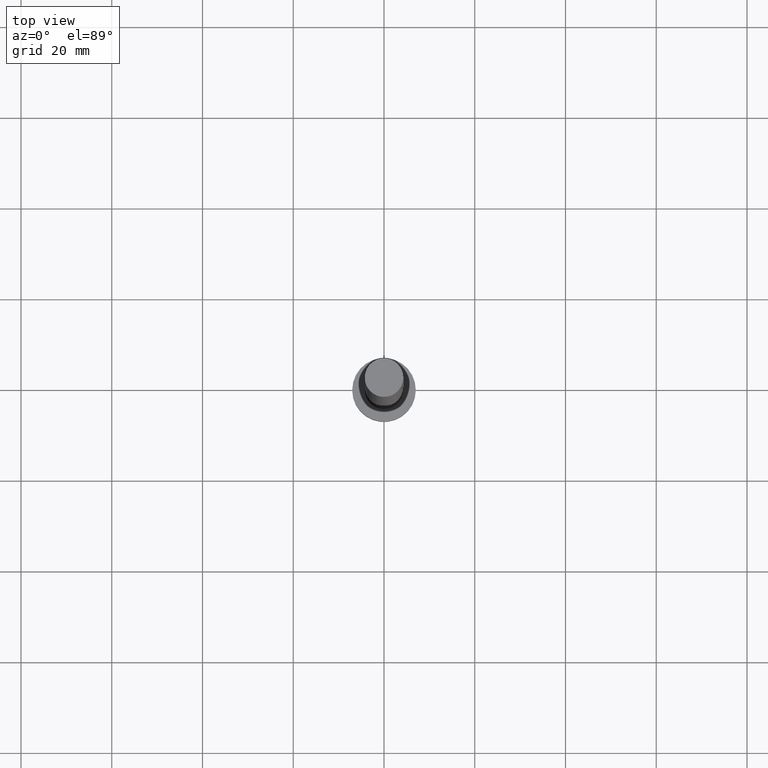
[diagram: clean part render]
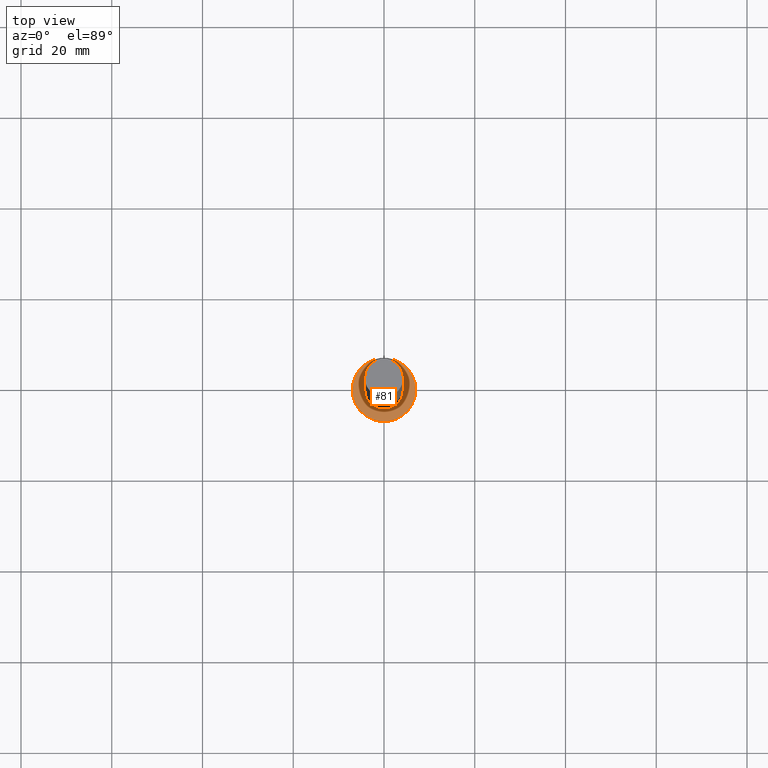
[diagram: same view with one face highlighted and labeled with its STEP entity id]
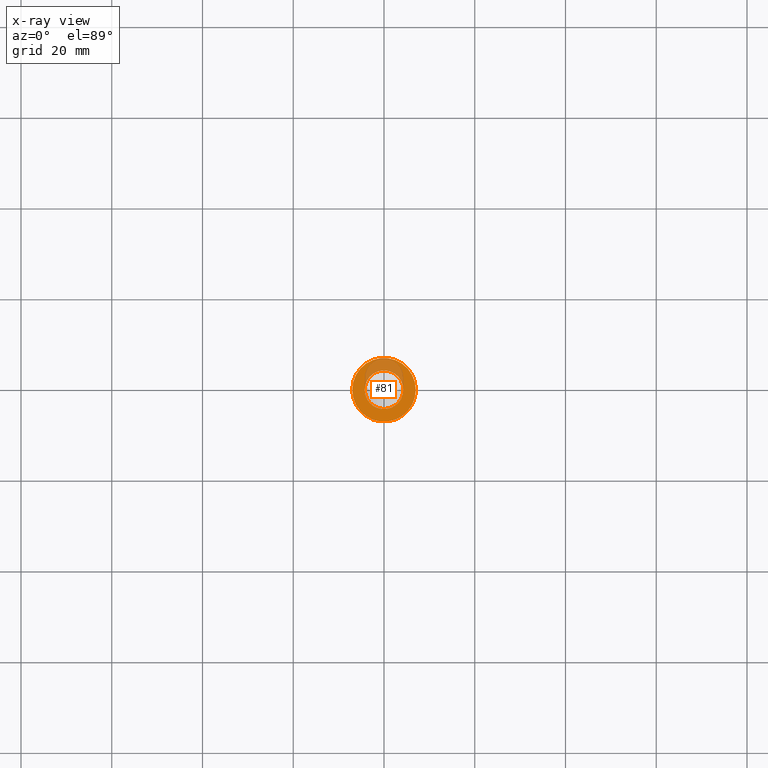
[diagram: x-ray of the same camera — body ghosted, the highlighted face saturated]
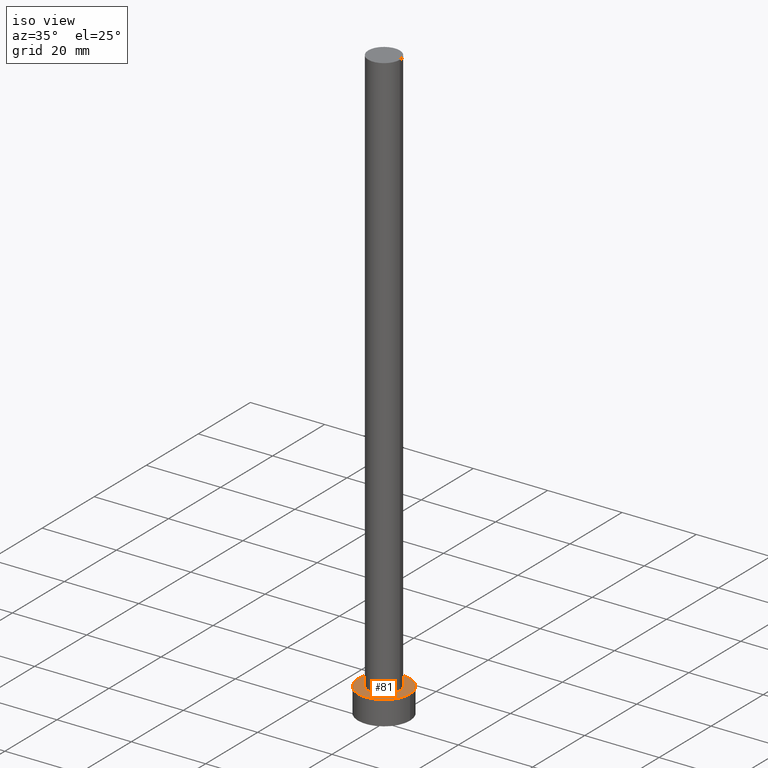
[diagram: same view with one face highlighted and labeled with its STEP entity id]
A machine part, top view. The second image highlights one B-rep face of the part: STEP entity #81.
The next image is the same camera in x-ray: the body ghosted, the highlighted face saturated — about 24% of this face is hidden behind the body in this view.
A second angle (iso view) of the same face is appended — the face is thin or edge-on in the first view.
In plain terms, the highlighted planar face has unit normal (0, 0, 1).
Its self-contained STEP definition (entity closure, byte-faithful):
#6 = VERTEX_POINT ( 'NONE', #244 ) ;
#11 = AXIS2_PLACEMENT_3D ( 'NONE', #165, #100, #216 ) ;
#12 = DIRECTION ( 'NONE',  ( 0.000000000000000000, 0.000000000000000000, 1.000000000000000000 ) ) ;
#14 = CARTESIAN_POINT ( 'NONE',  ( 0.000000000000000000, 0.000000000000000000, 6.500000000000000000 ) ) ;
#17 = DIRECTION ( 'NONE',  ( 0.000000000000000000, 0.000000000000000000, 1.000000000000000000 ) ) ;
#19 = DIRECTION ( 'NONE',  ( 0.000000000000000000, 0.000000000000000000, 1.000000000000000000 ) ) ;
#22 = AXIS2_PLACEMENT_3D ( 'NONE', #237, #144, #62 ) ;
#28 = AXIS2_PLACEMENT_3D ( 'NONE', #118, #19, #163 ) ;
#52 = EDGE_CURVE ( 'NONE', #108, #243, #204, .T. ) ;
#55 = AXIS2_PLACEMENT_3D ( 'NONE', #14, #17, #176 ) ;
#58 = CARTESIAN_POINT ( 'NONE',  ( -7.000000000000000000, 0.000000000000000000, 6.500000000000000000 ) ) ;
#62 = DIRECTION ( 'NONE',  ( 1.000000000000000000, 0.000000000000000000, 0.000000000000000000 ) ) ;
#74 = PLANE ( 'NONE',  #28 ) ;
#80 = ORIENTED_EDGE ( 'NONE', *, *, #174, .F. ) ;
#81 = ADVANCED_FACE ( 'NONE', ( #121, #215 ), #74, .T. ) ;
#84 = EDGE_LOOP ( 'NONE', ( #125, #80 ) ) ;
#94 = CIRCLE ( 'NONE', #22, 4.250000000000000000 ) ;
#100 = DIRECTION ( 'NONE',  ( 0.000000000000000000, 0.000000000000000000, 1.000000000000000000 ) ) ;
#108 = VERTEX_POINT ( 'NONE', #58 ) ;
#111 = CIRCLE ( 'NONE', #11, 7.000000000000000000 ) ;
#112 = EDGE_CURVE ( 'NONE', #222, #6, #139, .T. ) ;
#116 = CARTESIAN_POINT ( 'NONE',  ( -4.250000000000000000, 0.000000000000000000, 6.500000000000000000 ) ) ;
#117 = CARTESIAN_POINT ( 'NONE',  ( 0.000000000000000000, 0.000000000000000000, 6.500000000000000000 ) ) ;
#118 = CARTESIAN_POINT ( 'NONE',  ( 0.000000000000000000, 0.000000000000000000, 6.500000000000000000 ) ) ;
#121 = FACE_BOUND ( 'NONE', #84, .T. ) ;
#125 = ORIENTED_EDGE ( 'NONE', *, *, #112, .F. ) ;
#139 = CIRCLE ( 'NONE', #55, 4.250000000000000000 ) ;
#144 = DIRECTION ( 'NONE',  ( 0.000000000000000000, 0.000000000000000000, 1.000000000000000000 ) ) ;
#146 = ORIENTED_EDGE ( 'NONE', *, *, #52, .T. ) ;
#157 = EDGE_CURVE ( 'NONE', #243, #108, #111, .T. ) ;
#163 = DIRECTION ( 'NONE',  ( 1.000000000000000000, 0.000000000000000000, -0.000000000000000000 ) ) ;
#165 = CARTESIAN_POINT ( 'NONE',  ( 0.000000000000000000, 0.000000000000000000, 6.500000000000000000 ) ) ;
#174 = EDGE_CURVE ( 'NONE', #6, #222, #94, .T. ) ;
#176 = DIRECTION ( 'NONE',  ( 1.000000000000000000, 0.000000000000000000, 0.000000000000000000 ) ) ;
#183 = EDGE_LOOP ( 'NONE', ( #146, #220 ) ) ;
#190 = CARTESIAN_POINT ( 'NONE',  ( 7.000000000000000000, 8.572527594031471218E-16, 6.500000000000000000 ) ) ;
#191 = AXIS2_PLACEMENT_3D ( 'NONE', #117, #12, #255 ) ;
#204 = CIRCLE ( 'NONE', #191, 7.000000000000000000 ) ;
#215 = FACE_OUTER_BOUND ( 'NONE', #183, .T. ) ;
#216 = DIRECTION ( 'NONE',  ( 1.000000000000000000, 0.000000000000000000, 0.000000000000000000 ) ) ;
#220 = ORIENTED_EDGE ( 'NONE', *, *, #157, .T. ) ;
#222 = VERTEX_POINT ( 'NONE', #116 ) ;
#237 = CARTESIAN_POINT ( 'NONE',  ( 0.000000000000000000, 0.000000000000000000, 6.500000000000000000 ) ) ;
#243 = VERTEX_POINT ( 'NONE', #190 ) ;
#244 = CARTESIAN_POINT ( 'NONE',  ( 4.250000000000000000, 5.204748896376250699E-16, 6.500000000000000000 ) ) ;
#255 = DIRECTION ( 'NONE',  ( 1.000000000000000000, 0.000000000000000000, 0.000000000000000000 ) ) ;